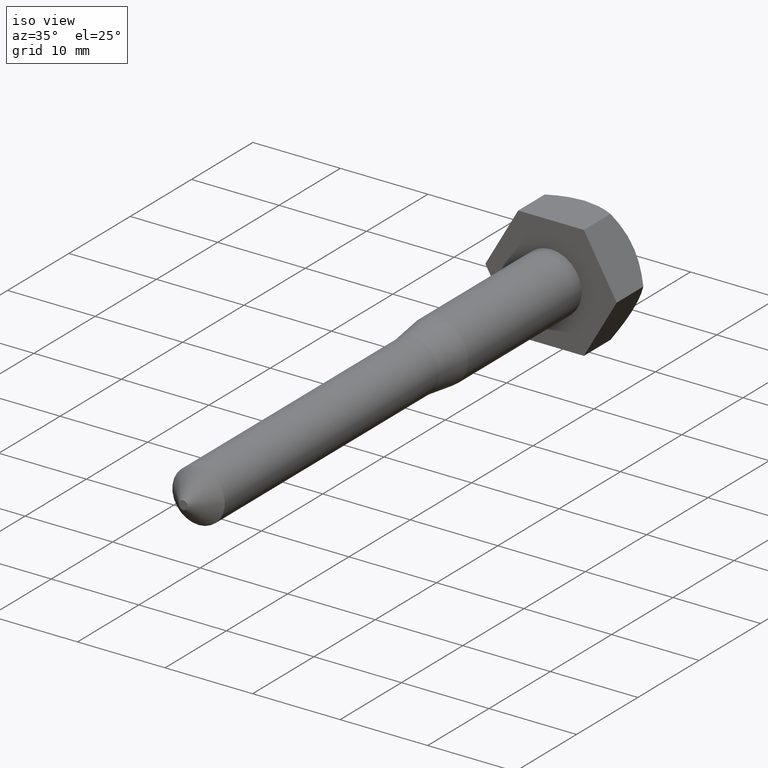
[diagram: clean part render]
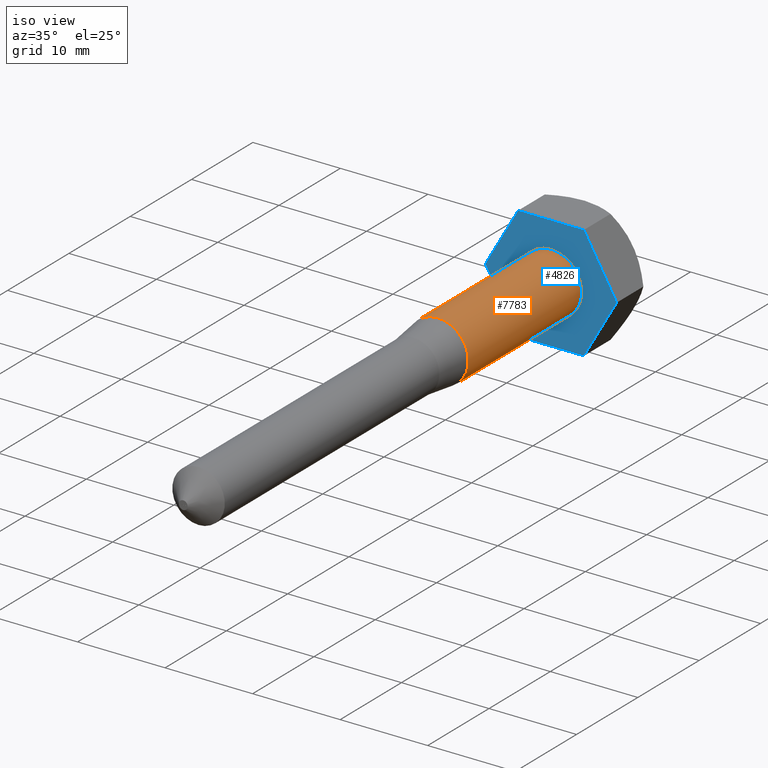
[diagram: same view with the hole feature highlighted: cylindrical wall and planar end face, labeled with their STEP entity ids]
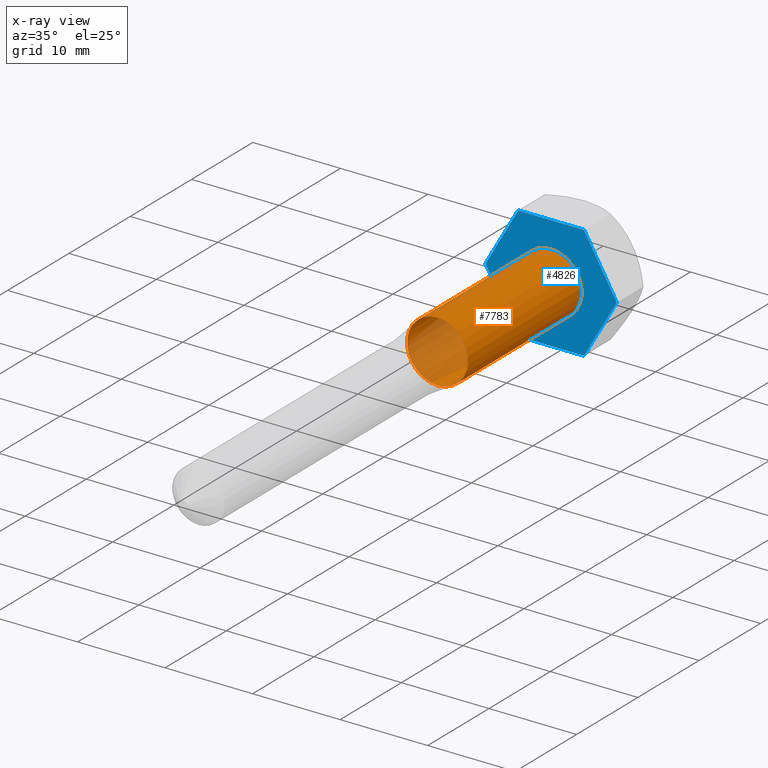
[diagram: x-ray of the same camera — body ghosted, the hole faces saturated]
A machine part, iso view. The highlighted faces form one hole feature of diameter 7 mm: the cylindrical wall (entity #7783, orange) and its adjacent planar end face (entity #4826, blue) — they share a circular edge in the B-rep.
The next image is the same camera in x-ray (body ghosted, the hole faces saturated) — the bore reads through the body.
Wall:
#526 = CYLINDRICAL_SURFACE ( 'NONE', #9653, 3.500000000000000900 ) ;
#595 = AXIS2_PLACEMENT_3D ( 'NONE', #1289, #7541, #16512 ) ;
#907 = FACE_OUTER_BOUND ( 'NONE', #10829, .T. ) ;
#1289 = CARTESIAN_POINT ( 'NONE',  ( 0.0000000000000000000, -21.24999999999999600, 0.0000000000000000000 ) ) ;
#1648 = CIRCLE ( 'NONE', #595, 3.500000000000000900 ) ;
#2701 = CIRCLE ( 'NONE', #16175, 3.500000000000000900 ) ;
#5693 = CARTESIAN_POINT ( 'NONE',  ( 0.0000000000000000000, -2.749999999999999600, 0.0000000000000000000 ) ) ;
#5918 = ORIENTED_EDGE ( 'NONE', *, *, #13254, .F. ) ;
#7541 = DIRECTION ( 'NONE',  ( -0.0000000000000000000, -1.000000000000000000, -0.0000000000000000000 ) ) ;
#7783 = ADVANCED_FACE ( 'NONE', ( #907, #13456 ), #526, .T. ) ;
#8264 = EDGE_CURVE ( 'NONE', #12331, #12331, #2701, .T. ) ;
#8937 = EDGE_LOOP ( 'NONE', ( #5918 ) ) ;
#9370 = DIRECTION ( 'NONE',  ( -0.0000000000000000000, -1.000000000000000000, -0.0000000000000000000 ) ) ;
#9653 = AXIS2_PLACEMENT_3D ( 'NONE', #5693, #14629, #10797 ) ;
#10004 = CARTESIAN_POINT ( 'NONE',  ( 0.0000000000000000000, -2.749999999999999600, -3.500000000000000900 ) ) ;
#10797 = DIRECTION ( 'NONE',  ( 0.0000000000000000000, 0.0000000000000000000, -1.000000000000000000 ) ) ;
#10829 = EDGE_LOOP ( 'NONE', ( #14854 ) ) ;
#11850 = DIRECTION ( 'NONE',  ( 0.0000000000000000000, 0.0000000000000000000, -1.000000000000000000 ) ) ;
#12331 = VERTEX_POINT ( 'NONE', #10004 ) ;
#12360 = CARTESIAN_POINT ( 'NONE',  ( 0.0000000000000000000, -21.24999999999999600, -3.500000000000000900 ) ) ;
#13254 = EDGE_CURVE ( 'NONE', #15551, #15551, #1648, .T. ) ;
#13456 = FACE_OUTER_BOUND ( 'NONE', #8937, .T. ) ;
#14629 = DIRECTION ( 'NONE',  ( -0.0000000000000000000, -1.000000000000000000, -0.0000000000000000000 ) ) ;
#14854 = ORIENTED_EDGE ( 'NONE', *, *, #8264, .T. ) ;
#15422 = CARTESIAN_POINT ( 'NONE',  ( 0.0000000000000000000, -2.749999999999999600, 0.0000000000000000000 ) ) ;
#15551 = VERTEX_POINT ( 'NONE', #12360 ) ;
#16175 = AXIS2_PLACEMENT_3D ( 'NONE', #15422, #9370, #11850 ) ;
#16512 = DIRECTION ( 'NONE',  ( 0.0000000000000000000, 0.0000000000000000000, -1.000000000000000000 ) ) ;
End face:
#66 = EDGE_CURVE ( 'NONE', #11810, #10404, #16002, .T. ) ;
#1096 = DIRECTION ( 'NONE',  ( 0.0000000000000000000, -0.0000000000000000000, 1.000000000000000000 ) ) ;
#1186 = LINE ( 'NONE', #11615, #15543 ) ;
#1262 = DIRECTION ( 'NONE',  ( 1.000000000000000000, 0.0000000000000000000, -1.040063952971876700E-014 ) ) ;
#1661 = LINE ( 'NONE', #1688, #12801 ) ;
#1688 = CARTESIAN_POINT ( 'NONE',  ( -3.752776749732600300, -2.750000000000000000, -6.499999999999987600 ) ) ;
#2089 = DIRECTION ( 'NONE',  ( -1.000000000000000000, 0.0000000000000000000, 3.466879843239589100E-015 ) ) ;
#2408 = CARTESIAN_POINT ( 'NONE',  ( 3.752776749732555500, -2.750000000000000000, -6.500000000000013300 ) ) ;
#2701 = CIRCLE ( 'NONE', #16175, 3.500000000000000900 ) ;
#2742 = EDGE_CURVE ( 'NONE', #10868, #10489, #1186, .T. ) ;
#2909 = DIRECTION ( 'NONE',  ( -0.4999999999999950600, 0.0000000000000000000, 0.8660254037844415900 ) ) ;
#3587 = DIRECTION ( 'NONE',  ( 0.0000000000000000000, 1.000000000000000000, 0.0000000000000000000 ) ) ;
#3906 = EDGE_CURVE ( 'NONE', #11433, #10868, #12519, .T. ) ;
#4001 = DIRECTION ( 'NONE',  ( -0.5000000000000011100, 0.0000000000000000000, -0.8660254037844380400 ) ) ;
#4778 = CARTESIAN_POINT ( 'NONE',  ( 0.0000000000000000000, -2.750000000000000000, 0.0000000000000000000 ) ) ;
#4826 = ADVANCED_FACE ( 'NONE', ( #10311, #13923 ), #12556, .F. ) ;
#5163 = CARTESIAN_POINT ( 'NONE',  ( -7.505553499465141200, -2.750000000000000000, 5.241099996214262600E-014 ) ) ;
#5698 = LINE ( 'NONE', #15296, #11061 ) ;
#6185 = VECTOR ( 'NONE', #2089, 1000.000000000000000 ) ;
#6286 = ORIENTED_EDGE ( 'NONE', *, *, #2742, .F. ) ;
#6911 = CARTESIAN_POINT ( 'NONE',  ( 3.752776749732646100, -2.750000000000000000, 6.499999999999961800 ) ) ;
#6953 = EDGE_CURVE ( 'NONE', #10404, #11433, #5698, .T. ) ;
#6959 = DIRECTION ( 'NONE',  ( 0.4999999999999950000, 0.0000000000000000000, -0.8660254037844415900 ) ) ;
#7263 = ORIENTED_EDGE ( 'NONE', *, *, #66, .F. ) ;
#7284 = CARTESIAN_POINT ( 'NONE',  ( 3.752776749732646100, -2.750000000000000000, 6.499999999999961800 ) ) ;
#7435 = CARTESIAN_POINT ( 'NONE',  ( 7.505553499465141200, -2.750000000000000000, 0.0000000000000000000 ) ) ;
#7569 = DIRECTION ( 'NONE',  ( 0.5000000000000069900, 0.0000000000000000000, 0.8660254037844346000 ) ) ;
#8264 = EDGE_CURVE ( 'NONE', #12331, #12331, #2701, .T. ) ;
#8591 = CARTESIAN_POINT ( 'NONE',  ( -7.505553499465141200, -2.750000000000000000, 5.241099996214262600E-014 ) ) ;
#9183 = ORIENTED_EDGE ( 'NONE', *, *, #3906, .F. ) ;
#9370 = DIRECTION ( 'NONE',  ( -0.0000000000000000000, -1.000000000000000000, -0.0000000000000000000 ) ) ;
#9779 = ORIENTED_EDGE ( 'NONE', *, *, #12955, .F. ) ;
#10004 = CARTESIAN_POINT ( 'NONE',  ( 0.0000000000000000000, -2.749999999999999600, -3.500000000000000900 ) ) ;
#10311 = FACE_BOUND ( 'NONE', #16185, .T. ) ;
#10404 = VERTEX_POINT ( 'NONE', #13496 ) ;
#10489 = VERTEX_POINT ( 'NONE', #2408 ) ;
#10868 = VERTEX_POINT ( 'NONE', #7435 ) ;
#11035 = CARTESIAN_POINT ( 'NONE',  ( 3.752776749732555500, -2.750000000000000000, -6.500000000000013300 ) ) ;
#11061 = VECTOR ( 'NONE', #1262, 1000.000000000000000 ) ;
#11433 = VERTEX_POINT ( 'NONE', #7284 ) ;
#11615 = CARTESIAN_POINT ( 'NONE',  ( 7.505553499465141200, -2.750000000000000000, 0.0000000000000000000 ) ) ;
#11682 = AXIS2_PLACEMENT_3D ( 'NONE', #4778, #3587, #1096 ) ;
#11696 = VERTEX_POINT ( 'NONE', #14230 ) ;
#11810 = VERTEX_POINT ( 'NONE', #8591 ) ;
#11850 = DIRECTION ( 'NONE',  ( 0.0000000000000000000, 0.0000000000000000000, -1.000000000000000000 ) ) ;
#12150 = ORIENTED_EDGE ( 'NONE', *, *, #6953, .F. ) ;
#12200 = VECTOR ( 'NONE', #7569, 999.9999999999998900 ) ;
#12331 = VERTEX_POINT ( 'NONE', #10004 ) ;
#12449 = ORIENTED_EDGE ( 'NONE', *, *, #14264, .F. ) ;
#12519 = LINE ( 'NONE', #6911, #15339 ) ;
#12556 = PLANE ( 'NONE',  #11682 ) ;
#12801 = VECTOR ( 'NONE', #2909, 1000.000000000000000 ) ;
#12955 = EDGE_CURVE ( 'NONE', #11696, #11810, #1661, .T. ) ;
#13496 = CARTESIAN_POINT ( 'NONE',  ( -3.752776749732509700, -2.750000000000000000, 6.500000000000040000 ) ) ;
#13923 = FACE_OUTER_BOUND ( 'NONE', #14139, .T. ) ;
#14032 = ORIENTED_EDGE ( 'NONE', *, *, #8264, .F. ) ;
#14139 = EDGE_LOOP ( 'NONE', ( #9183, #12150, #7263, #9779, #12449, #6286 ) ) ;
#14230 = CARTESIAN_POINT ( 'NONE',  ( -3.752776749732600300, -2.750000000000000000, -6.499999999999987600 ) ) ;
#14264 = EDGE_CURVE ( 'NONE', #10489, #11696, #14778, .T. ) ;
#14778 = LINE ( 'NONE', #11035, #6185 ) ;
#15296 = CARTESIAN_POINT ( 'NONE',  ( -3.752776749732509700, -2.750000000000000000, 6.500000000000040000 ) ) ;
#15339 = VECTOR ( 'NONE', #6959, 1000.000000000000000 ) ;
#15422 = CARTESIAN_POINT ( 'NONE',  ( 0.0000000000000000000, -2.749999999999999600, 0.0000000000000000000 ) ) ;
#15543 = VECTOR ( 'NONE', #4001, 1000.000000000000100 ) ;
#16002 = LINE ( 'NONE', #5163, #12200 ) ;
#16175 = AXIS2_PLACEMENT_3D ( 'NONE', #15422, #9370, #11850 ) ;
#16185 = EDGE_LOOP ( 'NONE', ( #14032 ) ) ;